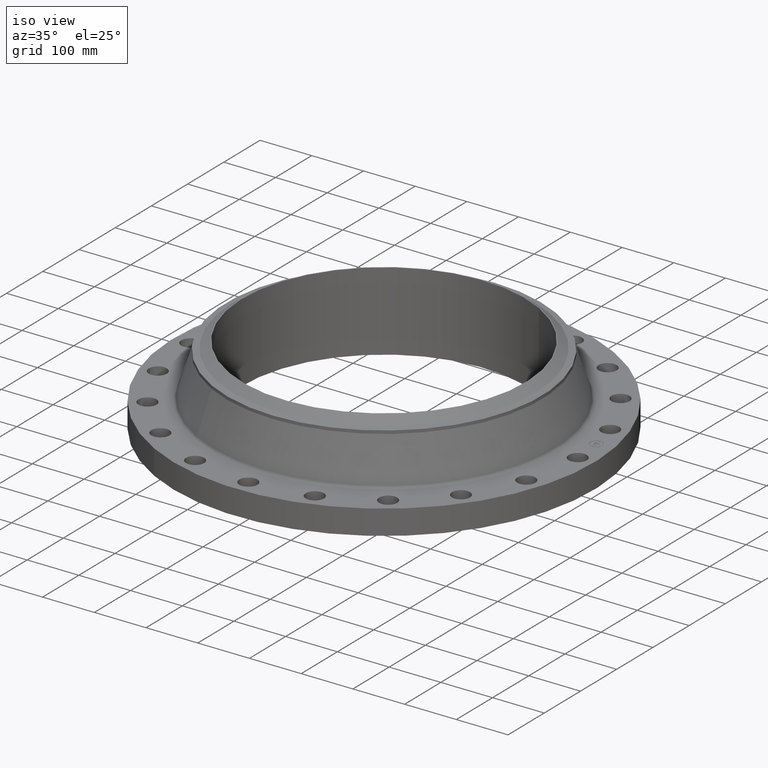
[diagram: clean part render]
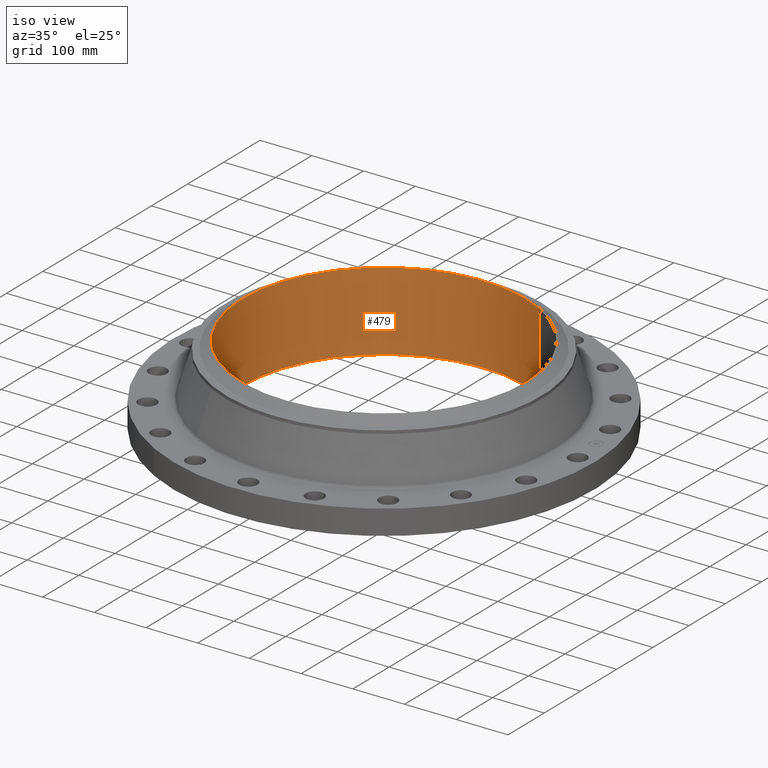
[diagram: same view with one face highlighted and labeled with its STEP entity id]
A machine part, iso view. The second image highlights one B-rep face of the part: STEP entity #479.
In plain terms, the highlighted cylindrical surface (partial cylindrical patch) has radius 273.837 mm, axis along (0, 0, -1).
Its self-contained STEP definition (entity closure, byte-faithful):
#432=AXIS2_PLACEMENT_3D('Circle Axis2P3D',#430,#431,$) ;
#452=AXIS2_PLACEMENT_3D('Cylinder Axis2P3D',#449,#450,#451) ;
#463=AXIS2_PLACEMENT_3D('Circle Axis2P3D',#461,#462,$) ;
#430=CARTESIAN_POINT('Axis2P3D Location',(1.1189649382E-015,2.79741234551E-016,6.00000000002)) ;
#434=CARTESIAN_POINT('Vertex',(-5.16868673171,-9.46121759978,6.00000000002)) ;
#436=CARTESIAN_POINT('Vertex',(5.16868673171,9.46121759978,6.00000000002)) ;
#449=CARTESIAN_POINT('Axis2P3D Location',(0.,0.,3.05000000001)) ;
#454=CARTESIAN_POINT('Line Origine',(-5.16868673171,-9.46121759978,3.00000000001)) ;
#458=CARTESIAN_POINT('Vertex',(-5.16868673171,-9.46121759978,-9.62309846856E-014)) ;
#461=CARTESIAN_POINT('Axis2P3D Location',(0.,0.,-9.62309846856E-014)) ;
#465=CARTESIAN_POINT('Vertex',(5.16868673171,9.46121759978,-9.62309846856E-014)) ;
#468=CARTESIAN_POINT('Line Origine',(5.16868673171,9.46121759978,3.00000000001)) ;
#431=DIRECTION('Axis2P3D Direction',(0.,-0.,-0.0393700787402)) ;
#450=DIRECTION('Axis2P3D Direction',(0.,0.,-0.0393700787402)) ;
#451=DIRECTION('Axis2P3D XDirection',(0.0188750212049,0.0345504945626,0.)) ;
#455=DIRECTION('Vector Direction',(0.,0.,-0.0393700787402)) ;
#462=DIRECTION('Axis2P3D Direction',(0.,0.,-0.0393700787402)) ;
#469=DIRECTION('Vector Direction',(0.,0.,-0.0393700787402)) ;
#456=VECTOR('Line Direction',#455,0.0393700787402) ;
#470=VECTOR('Line Direction',#469,0.0393700787402) ;
#474=ORIENTED_EDGE('',*,*,#460,.T.) ;
#475=ORIENTED_EDGE('',*,*,#467,.T.) ;
#476=ORIENTED_EDGE('',*,*,#472,.F.) ;
#477=ORIENTED_EDGE('',*,*,#438,.F.) ;
#479=ADVANCED_FACE('PartBody',(#478),#453,.F.) ;
#433=CIRCLE('generated circle',#432,10.781) ;
#464=CIRCLE('generated circle',#463,10.781) ;
#453=CYLINDRICAL_SURFACE('generated cylinder',#452,10.781) ;
#438=EDGE_CURVE('',#435,#437,#433,.T.) ;
#460=EDGE_CURVE('',#435,#459,#457,.T.) ;
#467=EDGE_CURVE('',#459,#466,#464,.T.) ;
#472=EDGE_CURVE('',#437,#466,#471,.T.) ;
#473=EDGE_LOOP('',(#474,#475,#476,#477)) ;
#478=FACE_OUTER_BOUND('',#473,.T.) ;
#457=LINE('Line',#454,#456) ;
#471=LINE('Line',#468,#470) ;
#435=VERTEX_POINT('',#434) ;
#437=VERTEX_POINT('',#436) ;
#459=VERTEX_POINT('',#458) ;
#466=VERTEX_POINT('',#465) ;